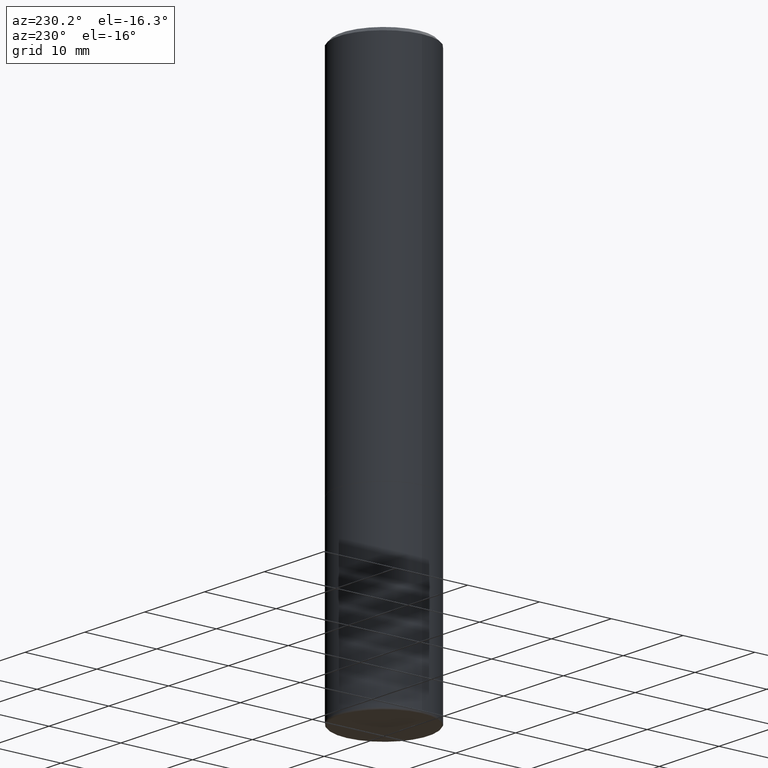
[diagram: clean part render]
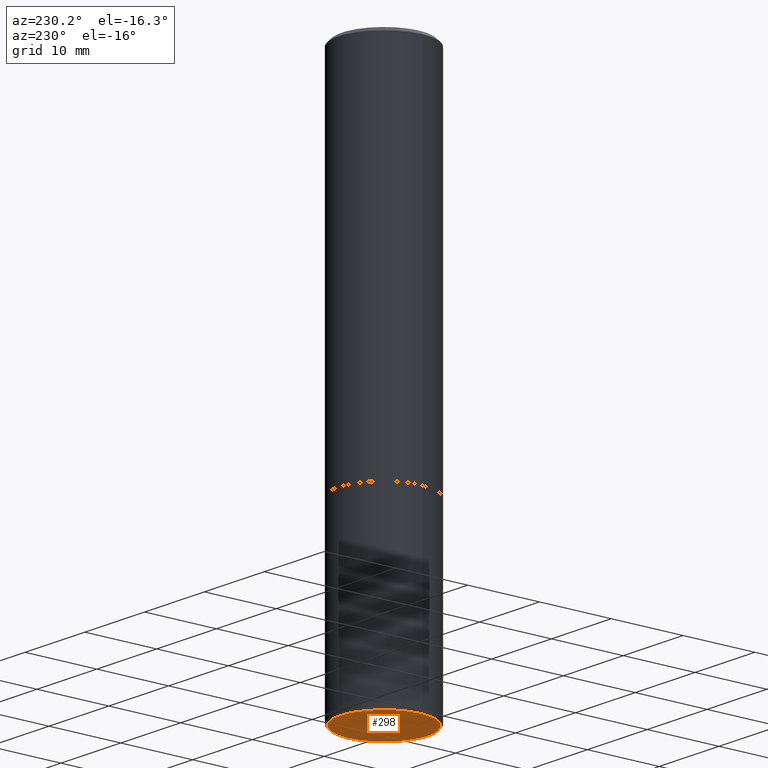
[diagram: same view with one face highlighted and labeled with its STEP entity id]
A machine part, auxiliary view. The second image highlights one B-rep face of the part: STEP entity #298.
In plain terms, the highlighted planar face has unit normal (0, -0, -1).
Its self-contained STEP definition (entity closure, byte-faithful):
#19 = CARTESIAN_POINT ( 'NONE',  ( 7.336406418555408669E-29, -1.047444401652943478E-14, -2.999999999999999556 ) ) ;
#35 = AXIS2_PLACEMENT_3D ( 'NONE', #286, #258, #94 ) ;
#47 = DIRECTION ( 'NONE',  ( -2.445468806185136597E-29, 3.491481338843145583E-15, 1.000000000000000000 ) ) ;
#83 = ORIENTED_EDGE ( 'NONE', *, *, #122, .F. ) ;
#94 = DIRECTION ( 'NONE',  ( -1.000000000000000000, 6.982962677686265922E-15, -4.876176775795935793E-29 ) ) ;
#97 = EDGE_LOOP ( 'NONE', ( #253, #83 ) ) ;
#120 = VERTEX_POINT ( 'NONE', #311 ) ;
#122 = EDGE_CURVE ( 'NONE', #120, #285, #233, .T. ) ;
#148 = DIRECTION ( 'NONE',  ( 1.000000000000000000, -6.982962677686266711E-15, 0.000000000000000000 ) ) ;
#176 = EDGE_CURVE ( 'NONE', #285, #120, #387, .T. ) ;
#213 = DIRECTION ( 'NONE',  ( -2.445468806185136597E-29, 3.491481338843145583E-15, 1.000000000000000000 ) ) ;
#233 = CIRCLE ( 'NONE', #317, 0.2400000000000000466 ) ;
#250 = DIRECTION ( 'NONE',  ( 1.000000000000000000, -6.982962677686266711E-15, 0.000000000000000000 ) ) ;
#253 = ORIENTED_EDGE ( 'NONE', *, *, #176, .F. ) ;
#258 = DIRECTION ( 'NONE',  ( 2.438088387897960049E-29, -3.491481338843145188E-15, -1.000000000000000000 ) ) ;
#285 = VERTEX_POINT ( 'NONE', #389 ) ;
#286 = CARTESIAN_POINT ( 'NONE',  ( 1.210550456377282398E-28, -3.644824032368776532E-15, -2.999999999999999556 ) ) ;
#298 = ADVANCED_FACE ( 'NONE', ( #386 ), #352, .T. ) ;
#311 = CARTESIAN_POINT ( 'NONE',  ( -0.2400000000000000466, -8.716156907222976683E-15, -2.999999999999999556 ) ) ;
#317 = AXIS2_PLACEMENT_3D ( 'NONE', #335, #47, #250 ) ;
#335 = CARTESIAN_POINT ( 'NONE',  ( 7.336406418555408669E-29, -1.047444401652943478E-14, -2.999999999999999556 ) ) ;
#352 = PLANE ( 'NONE',  #35 ) ;
#386 = FACE_OUTER_BOUND ( 'NONE', #97, .T. ) ;
#387 = CIRCLE ( 'NONE', #407, 0.2400000000000000466 ) ;
#389 = CARTESIAN_POINT ( 'NONE',  ( 0.2400000000000000466, -1.215035505917413973E-14, -2.999999999999999556 ) ) ;
#407 = AXIS2_PLACEMENT_3D ( 'NONE', #19, #213, #148 ) ;